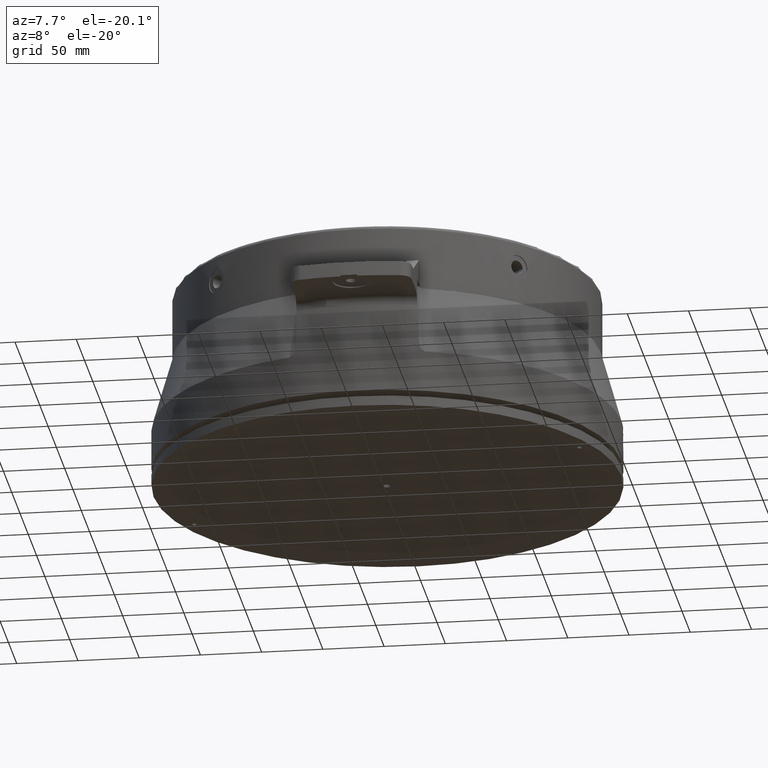
[diagram: clean part render]
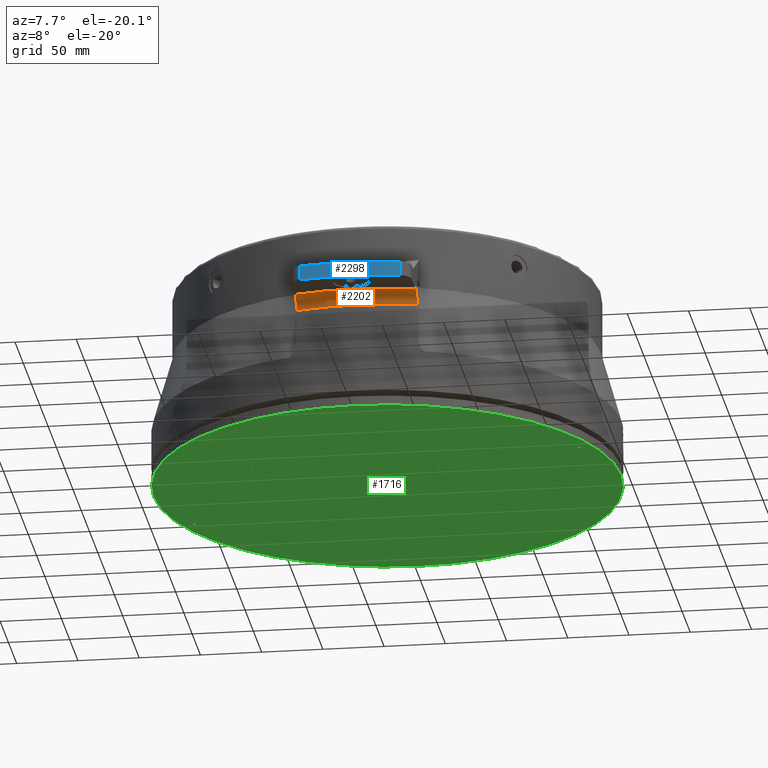
[diagram: same view with three faces highlighted in distinct colors, each labeled with its STEP entity id]
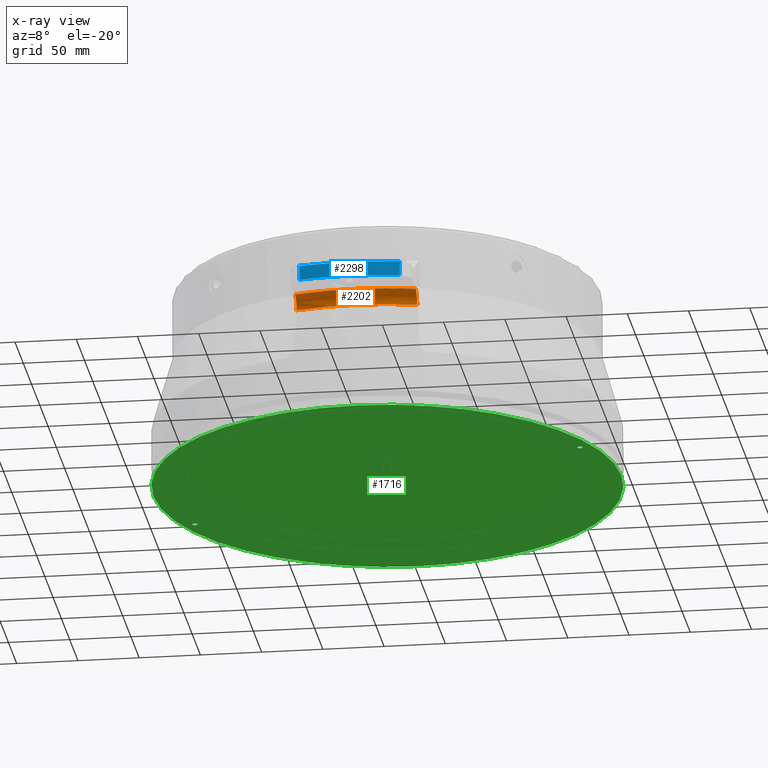
[diagram: x-ray of the same camera — body ghosted, the three highlighted faces saturated]
A machine part, auxiliary view with three faces highlighted in distinct colors.
The next image is the same camera in x-ray (body ghosted, the three faces saturated) — at least one of them is partly hidden behind the body in this view.
Their STEP definitions:

[orange] entity #2202 — the highlighted toroidal blend (fillet) surface has major radius 200.498 mm and minor (blend) radius 10 mm.
#457=CARTESIAN_POINT('',(0.E0,0.E0,-7.412559506044E1));
#458=DIRECTION('',(0.E0,0.E0,1.E0));
#459=DIRECTION('',(-2.586462503534E-1,-9.659721099380E-1,0.E0));
#460=AXIS2_PLACEMENT_3D('',#457,#458,#459);
#717=CARTESIAN_POINT('',(-4.927189282601E1,-1.840168732729E2,
-7.412559506044E1));
#718=CARTESIAN_POINT('',(-4.927189282601E1,-1.840120839342E2,
-7.375726825511E1));
#719=CARTESIAN_POINT('',(-4.927189282601E1,-1.840442853633E2,
-7.302279561971E1));
#720=CARTESIAN_POINT('',(-4.927189282601E1,-1.842208474346E2,
-7.191761883116E1));
#721=CARTESIAN_POINT('',(-4.927189282601E1,-1.845244280050E2,
-7.083890661106E1));
#722=CARTESIAN_POINT('',(-4.927189282601E1,-1.849465165805E2,
-6.980657196297E1));
#723=CARTESIAN_POINT('',(-4.927189282601E1,-1.854914497893E2,
-6.881307206106E1));
#724=CARTESIAN_POINT('',(-4.927189282601E1,-1.861528549323E2,
-6.787962454648E1));
#725=CARTESIAN_POINT('',(-4.927189282601E1,-1.869167658203E2,
-6.702630458203E1));
#726=CARTESIAN_POINT('',(-4.927189282601E1,-1.877761522042E2,
-6.625971317263E1));
#727=CARTESIAN_POINT('',(-4.927189282601E1,-1.887322573324E2,
-6.558325488790E1));
#728=CARTESIAN_POINT('',(-4.927189282601E1,-1.897646134980E2,
-6.501621672002E1));
#729=CARTESIAN_POINT('',(-4.927189282601E1,-1.908482974155E2,
-6.456988928684E1));
#730=CARTESIAN_POINT('',(-4.927189282601E1,-1.919884071994E2,
-6.424240292556E1));
#731=CARTESIAN_POINT('',(-4.927189282601E1,-1.931663178233E2,
-6.404379083924E1));
#732=CARTESIAN_POINT('',(-4.927189282601E1,-1.939537235021E2,-6.4E1));
#733=CARTESIAN_POINT('',(-4.927189282601E1,-1.943498817104E2,-6.4E1));
#735=CARTESIAN_POINT('',(4.927189282601E1,-1.943498817104E2,-6.4E1));
#736=CARTESIAN_POINT('',(4.927189282601E1,-1.939537235021E2,-6.4E1));
#737=CARTESIAN_POINT('',(4.927189282601E1,-1.931663178233E2,-6.404379083924E1));
#738=CARTESIAN_POINT('',(4.927189282601E1,-1.919884071994E2,-6.424240292556E1));
#739=CARTESIAN_POINT('',(4.927189282601E1,-1.908482974155E2,-6.456988928684E1));
#740=CARTESIAN_POINT('',(4.927189282601E1,-1.897646134980E2,-6.501621672002E1));
#741=CARTESIAN_POINT('',(4.927189282601E1,-1.887322573324E2,-6.558325488790E1));
#742=CARTESIAN_POINT('',(4.927189282601E1,-1.877761522042E2,-6.625971317263E1));
#743=CARTESIAN_POINT('',(4.927189282601E1,-1.869167658203E2,-6.702630458203E1));
#744=CARTESIAN_POINT('',(4.927189282601E1,-1.861528549323E2,-6.787962454648E1));
#745=CARTESIAN_POINT('',(4.927189282601E1,-1.854914497893E2,-6.881307206106E1));
#746=CARTESIAN_POINT('',(4.927189282601E1,-1.849465165805E2,-6.980657196297E1));
#747=CARTESIAN_POINT('',(4.927189282601E1,-1.845244280050E2,-7.083890661106E1));
#748=CARTESIAN_POINT('',(4.927189282601E1,-1.842208474346E2,-7.191761883116E1));
#749=CARTESIAN_POINT('',(4.927189282601E1,-1.840442853633E2,-7.302279561971E1));
#750=CARTESIAN_POINT('',(4.927189282601E1,-1.840120839342E2,-7.375726825511E1));
#751=CARTESIAN_POINT('',(4.927189282601E1,-1.840168732729E2,-7.412559506044E1));
#779=CARTESIAN_POINT('',(0.E0,0.E0,-6.4E1));
#780=DIRECTION('',(0.E0,0.E0,1.E0));
#781=DIRECTION('',(-2.457471005326E-1,-9.693339788638E-1,0.E0));
#782=AXIS2_PLACEMENT_3D('',#779,#780,#781);
#1599=CARTESIAN_POINT('',(-4.927189282601E1,-1.840168732729E2,
-7.412559506044E1));
#1600=CARTESIAN_POINT('',(4.927189282601E1,-1.840168732729E2,
-7.412559506044E1));
#1601=VERTEX_POINT('',#1599);
#1602=VERTEX_POINT('',#1600);
#1603=CARTESIAN_POINT('',(-4.927189282601E1,-1.943498817104E2,-6.4E1));
#1604=CARTESIAN_POINT('',(4.927189282601E1,-1.943498817104E2,-6.4E1));
#1605=VERTEX_POINT('',#1603);
#1606=VERTEX_POINT('',#1604);
#2189=CARTESIAN_POINT('',(0.E0,0.E0,-7.4E1));
#2190=DIRECTION('',(0.E0,0.E0,-1.E0));
#2191=DIRECTION('',(-2.024629635178E-3,9.999979504353E-1,0.E0));
#2192=AXIS2_PLACEMENT_3D('',#2189,#2190,#2191);
#2193=TOROIDAL_SURFACE('',#2192,2.004983689298E2,1.E1);
#2194=ORIENTED_EDGE('',*,*,#1900,.F.);
#2196=ORIENTED_EDGE('',*,*,#2195,.T.);
#2198=ORIENTED_EDGE('',*,*,#2197,.T.);
#2199=ORIENTED_EDGE('',*,*,#2171,.T.);
#2200=EDGE_LOOP('',(#2194,#2196,#2198,#2199));
#2201=FACE_OUTER_BOUND('',#2200,.F.);
#461=CIRCLE('',#460,1.904991576669E2);
#734=B_SPLINE_CURVE_WITH_KNOTS('',3,(#717,#718,#719,#720,#721,#722,#723,#724,
#725,#726,#727,#728,#729,#730,#731,#732,#733),.UNSPECIFIED.,.F.,.F.,(4,1,1,1,1,
1,1,1,1,1,1,1,1,1,4),(0.E0,7.142857142857E-2,1.428571428571E-1,
2.142857142857E-1,2.857142857143E-1,3.571428571429E-1,4.285714285714E-1,5.E-1,
5.714285714286E-1,6.428571428571E-1,7.142857142857E-1,7.857142857143E-1,
8.571428571429E-1,9.285714285714E-1,1.E0),.UNSPECIFIED.);
#752=B_SPLINE_CURVE_WITH_KNOTS('',3,(#735,#736,#737,#738,#739,#740,#741,#742,
#743,#744,#745,#746,#747,#748,#749,#750,#751),.UNSPECIFIED.,.F.,.F.,(4,1,1,1,1,
1,1,1,1,1,1,1,1,1,4),(0.E0,7.142857142857E-2,1.428571428571E-1,
2.142857142857E-1,2.857142857143E-1,3.571428571429E-1,4.285714285714E-1,5.E-1,
5.714285714286E-1,6.428571428571E-1,7.142857142857E-1,7.857142857143E-1,
8.571428571429E-1,9.285714285714E-1,1.E0),.UNSPECIFIED.);
#783=CIRCLE('',#782,2.004983689298E2);
#1900=EDGE_CURVE('',#1601,#1602,#461,.T.);
#2171=EDGE_CURVE('',#1606,#1602,#752,.T.);
#2195=EDGE_CURVE('',#1601,#1605,#734,.T.);
#2197=EDGE_CURVE('',#1605,#1606,#783,.T.);
#2202=ADVANCED_FACE('',(#2201),#2193,.F.);

[blue] entity #2298 — the highlighted cylindrical surface (partial cylindrical patch) has radius 231.5 mm, axis along (0, 0, -1).
#765=CARTESIAN_POINT('',(0.E0,0.E0,-6.4E1));
#766=DIRECTION('',(0.E0,0.E0,1.E0));
#767=DIRECTION('',(2.910169765914E-2,-9.995764559019E-1,0.E0));
#768=AXIS2_PLACEMENT_3D('',#765,#766,#767);
#793=CARTESIAN_POINT('',(0.E0,0.E0,-6.4E1));
#794=DIRECTION('',(0.E0,0.E0,1.E0));
#795=DIRECTION('',(-1.772997418782E-1,-9.841568988378E-1,0.E0));
#796=AXIS2_PLACEMENT_3D('',#793,#794,#795);
#808=CARTESIAN_POINT('',(0.E0,0.E0,-6.3E1));
#809=DIRECTION('',(0.E0,0.E0,-1.E0));
#810=DIRECTION('',(2.910169765914E-2,-9.995764559019E-1,0.E0));
#811=AXIS2_PLACEMENT_3D('',#808,#809,#810);
#813=DIRECTION('',(-2.131628207280E-14,2.842170943040E-14,-1.E0));
#814=VECTOR('',#813,1.E0);
#815=CARTESIAN_POINT('',(-6.737043008091E0,-2.314019495413E2,-6.3E1));
#816=LINE('',#815,#814);
#817=DIRECTION('',(0.E0,0.E0,-1.E0));
#818=VECTOR('',#817,1.2E1);
#819=CARTESIAN_POINT('',(-4.104489024479E1,-2.278323220809E2,-5.2E1));
#820=LINE('',#819,#818);
#821=CARTESIAN_POINT('',(0.E0,0.E0,-5.2E1));
#822=DIRECTION('',(0.E0,0.E0,1.E0));
#823=DIRECTION('',(-1.772997418782E-1,-9.841568988378E-1,0.E0));
#824=AXIS2_PLACEMENT_3D('',#821,#822,#823);
#826=DIRECTION('',(0.E0,0.E0,1.E0));
#827=VECTOR('',#826,1.2E1);
#828=CARTESIAN_POINT('',(4.104489024479E1,-2.278323220809E2,-6.4E1));
#829=LINE('',#828,#827);
#830=DIRECTION('',(0.E0,0.E0,-1.E0));
#831=VECTOR('',#830,1.E0);
#832=CARTESIAN_POINT('',(6.737043008091E0,-2.314019495413E2,-6.3E1));
#833=LINE('',#832,#831);
#1583=CARTESIAN_POINT('',(4.104489024479E1,-2.278323220809E2,-5.2E1));
#1585=VERTEX_POINT('',#1583);
#1589=CARTESIAN_POINT('',(4.104489024479E1,-2.278323220809E2,-6.4E1));
#1590=VERTEX_POINT('',#1589);
#1591=CARTESIAN_POINT('',(-4.104489024479E1,-2.278323220809E2,-6.4E1));
#1593=VERTEX_POINT('',#1591);
#1597=CARTESIAN_POINT('',(-4.104489024479E1,-2.278323220809E2,-5.2E1));
#1598=VERTEX_POINT('',#1597);
#1617=CARTESIAN_POINT('',(6.737043008091E0,-2.314019495413E2,-6.3E1));
#1618=CARTESIAN_POINT('',(-6.737043008091E0,-2.314019495413E2,-6.3E1));
#1619=VERTEX_POINT('',#1617);
#1620=VERTEX_POINT('',#1618);
#1621=CARTESIAN_POINT('',(6.737043008091E0,-2.314019495413E2,-6.4E1));
#1622=VERTEX_POINT('',#1621);
#1623=CARTESIAN_POINT('',(-6.737043008091E0,-2.314019495413E2,-6.4E1));
#1624=VERTEX_POINT('',#1623);
#2279=CARTESIAN_POINT('',(0.E0,0.E0,-4.89E1));
#2280=DIRECTION('',(0.E0,0.E0,-1.E0));
#2281=DIRECTION('',(-2.588190451025E-1,-9.659258262891E-1,0.E0));
#2282=AXIS2_PLACEMENT_3D('',#2279,#2280,#2281);
#2283=CYLINDRICAL_SURFACE('',#2282,2.315E2);
#2285=ORIENTED_EDGE('',*,*,#2284,.T.);
#2286=ORIENTED_EDGE('',*,*,#2270,.T.);
#2287=ORIENTED_EDGE('',*,*,#2252,.F.);
#2289=ORIENTED_EDGE('',*,*,#2288,.F.);
#2291=ORIENTED_EDGE('',*,*,#2290,.T.);
#2293=ORIENTED_EDGE('',*,*,#2292,.F.);
#2294=ORIENTED_EDGE('',*,*,#2243,.F.);
#2295=ORIENTED_EDGE('',*,*,#2274,.F.);
#2296=EDGE_LOOP('',(#2285,#2286,#2287,#2289,#2291,#2293,#2294,#2295));
#2297=FACE_OUTER_BOUND('',#2296,.F.);
#769=CIRCLE('',#768,2.315E2);
#797=CIRCLE('',#796,2.315E2);
#812=CIRCLE('',#811,2.315E2);
#825=CIRCLE('',#824,2.315E2);
#2243=EDGE_CURVE('',#1622,#1590,#769,.T.);
#2252=EDGE_CURVE('',#1593,#1624,#797,.T.);
#2270=EDGE_CURVE('',#1620,#1624,#816,.T.);
#2274=EDGE_CURVE('',#1619,#1622,#833,.T.);
#2284=EDGE_CURVE('',#1619,#1620,#812,.T.);
#2288=EDGE_CURVE('',#1598,#1593,#820,.T.);
#2290=EDGE_CURVE('',#1598,#1585,#825,.T.);
#2292=EDGE_CURVE('',#1590,#1585,#829,.T.);
#2298=ADVANCED_FACE('',(#2297),#2283,.T.);

[green] entity #1716 — the highlighted planar face has unit normal (0, 0, 1).
#323=CARTESIAN_POINT('',(-1.665292857352E2,6.897868868381E1,-1.61E2));
#324=DIRECTION('',(0.E0,0.E0,-1.E0));
#325=DIRECTION('',(1.E0,0.E0,0.E0));
#326=AXIS2_PLACEMENT_3D('',#323,#324,#325);
#328=CARTESIAN_POINT('',(-1.665292857352E2,6.897868868381E1,-1.61E2));
#329=DIRECTION('',(0.E0,0.E0,-1.E0));
#330=DIRECTION('',(-1.E0,0.E0,0.E0));
#331=AXIS2_PLACEMENT_3D('',#328,#329,#330);
#333=CARTESIAN_POINT('',(1.665292857352E2,-6.897868868381E1,-1.61E2));
#334=DIRECTION('',(0.E0,0.E0,-1.E0));
#335=DIRECTION('',(-1.E0,0.E0,0.E0));
#336=AXIS2_PLACEMENT_3D('',#333,#334,#335);
#338=CARTESIAN_POINT('',(1.665292857352E2,-6.897868868381E1,-1.61E2));
#339=DIRECTION('',(0.E0,0.E0,-1.E0));
#340=DIRECTION('',(1.E0,0.E0,0.E0));
#341=AXIS2_PLACEMENT_3D('',#338,#339,#340);
#343=CARTESIAN_POINT('',(0.E0,0.E0,-1.61E2));
#344=DIRECTION('',(0.E0,0.E0,-1.E0));
#345=DIRECTION('',(1.E0,0.E0,0.E0));
#346=AXIS2_PLACEMENT_3D('',#343,#344,#345);
#348=CARTESIAN_POINT('',(0.E0,0.E0,-1.61E2));
#349=DIRECTION('',(0.E0,0.E0,-1.E0));
#350=DIRECTION('',(-1.E0,0.E0,0.E0));
#351=AXIS2_PLACEMENT_3D('',#348,#349,#350);
#362=CARTESIAN_POINT('',(2.957522019941E-14,0.E0,-1.61E2));
#363=DIRECTION('',(0.E0,0.E0,-1.E0));
#364=DIRECTION('',(-1.E0,0.E0,0.E0));
#365=AXIS2_PLACEMENT_3D('',#362,#363,#364);
#437=CARTESIAN_POINT('',(2.957522019941E-14,0.E0,-1.61E2));
#438=DIRECTION('',(0.E0,0.E0,1.E0));
#439=DIRECTION('',(-1.E0,0.E0,0.E0));
#440=AXIS2_PLACEMENT_3D('',#437,#438,#439);
#1472=CARTESIAN_POINT('',(-1.91E2,0.E0,-1.61E2));
#1473=CARTESIAN_POINT('',(1.91E2,-2.339075386371E-14,-1.61E2));
#1474=VERTEX_POINT('',#1472);
#1475=VERTEX_POINT('',#1473);
#1512=CARTESIAN_POINT('',(-1.644292857352E2,6.897868868381E1,-1.61E2));
#1513=CARTESIAN_POINT('',(-1.686292857352E2,6.897868868381E1,-1.61E2));
#1514=VERTEX_POINT('',#1512);
#1515=VERTEX_POINT('',#1513);
#1520=CARTESIAN_POINT('',(1.644292857352E2,-6.897868868381E1,-1.61E2));
#1521=CARTESIAN_POINT('',(1.686292857352E2,-6.897868868381E1,-1.61E2));
#1522=VERTEX_POINT('',#1520);
#1523=VERTEX_POINT('',#1521);
#1675=CARTESIAN_POINT('',(3.4E0,0.E0,-1.61E2));
#1676=CARTESIAN_POINT('',(-3.4E0,0.E0,-1.61E2));
#1677=VERTEX_POINT('',#1675);
#1678=VERTEX_POINT('',#1676);
#1687=CARTESIAN_POINT('',(2.957522019941E-14,0.E0,-1.61E2));
#1688=DIRECTION('',(0.E0,0.E0,1.E0));
#1689=DIRECTION('',(-1.E0,0.E0,0.E0));
#1690=AXIS2_PLACEMENT_3D('',#1687,#1688,#1689);
#1691=PLANE('',#1690);
#1693=ORIENTED_EDGE('',*,*,#1692,.F.);
#1695=ORIENTED_EDGE('',*,*,#1694,.T.);
#1696=EDGE_LOOP('',(#1693,#1695));
#1697=FACE_OUTER_BOUND('',#1696,.F.);
#1699=ORIENTED_EDGE('',*,*,#1698,.T.);
#1701=ORIENTED_EDGE('',*,*,#1700,.T.);
#1702=EDGE_LOOP('',(#1699,#1701));
#1703=FACE_BOUND('',#1702,.F.);
#1705=ORIENTED_EDGE('',*,*,#1704,.T.);
#1707=ORIENTED_EDGE('',*,*,#1706,.T.);
#1708=EDGE_LOOP('',(#1705,#1707));
#1709=FACE_BOUND('',#1708,.F.);
#1711=ORIENTED_EDGE('',*,*,#1710,.T.);
#1713=ORIENTED_EDGE('',*,*,#1712,.T.);
#1714=EDGE_LOOP('',(#1711,#1713));
#1715=FACE_BOUND('',#1714,.F.);
#327=CIRCLE('',#326,2.1E0);
#332=CIRCLE('',#331,2.1E0);
#337=CIRCLE('',#336,2.1E0);
#342=CIRCLE('',#341,2.1E0);
#347=CIRCLE('',#346,3.4E0);
#352=CIRCLE('',#351,3.4E0);
#366=CIRCLE('',#365,1.91E2);
#441=CIRCLE('',#440,1.91E2);
#1692=EDGE_CURVE('',#1474,#1475,#366,.T.);
#1694=EDGE_CURVE('',#1474,#1475,#441,.T.);
#1698=EDGE_CURVE('',#1514,#1515,#327,.T.);
#1700=EDGE_CURVE('',#1515,#1514,#332,.T.);
#1704=EDGE_CURVE('',#1522,#1523,#337,.T.);
#1706=EDGE_CURVE('',#1523,#1522,#342,.T.);
#1710=EDGE_CURVE('',#1677,#1678,#347,.T.);
#1712=EDGE_CURVE('',#1678,#1677,#352,.T.);
#1716=ADVANCED_FACE('',(#1697,#1703,#1709,#1715),#1691,.F.);